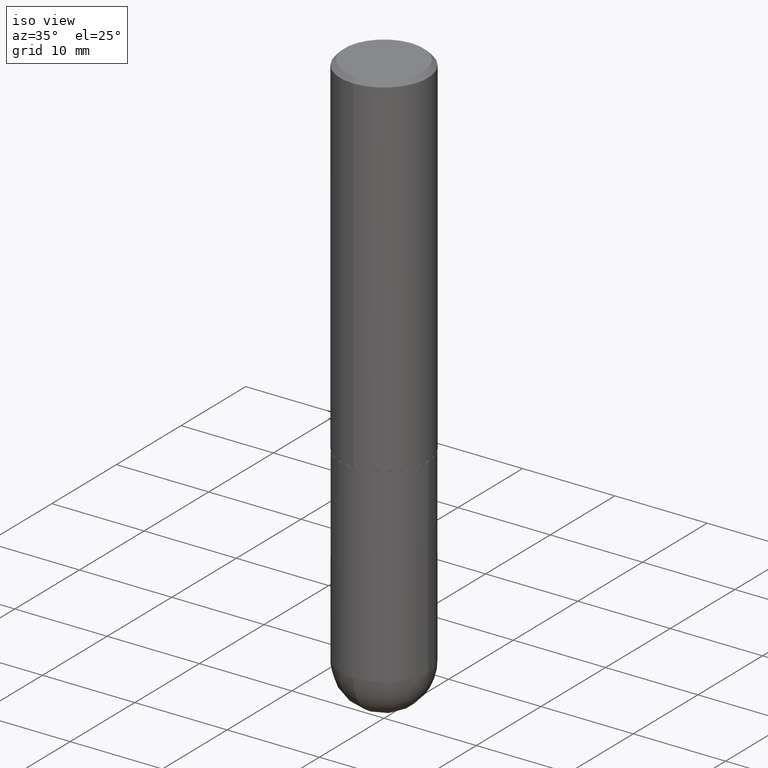
[diagram: clean part render]
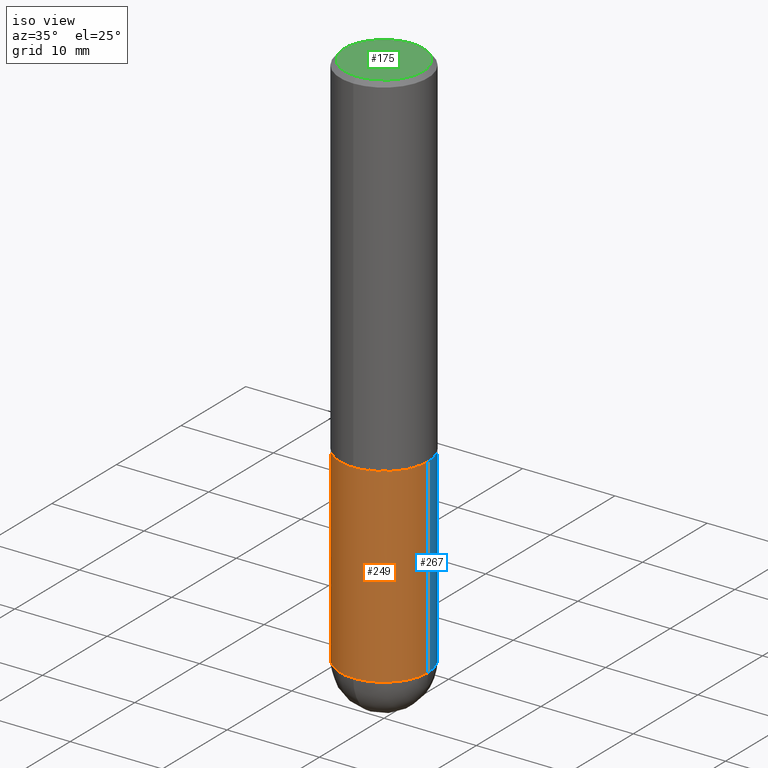
[diagram: same view with three faces highlighted in distinct colors, each labeled with its STEP entity id]
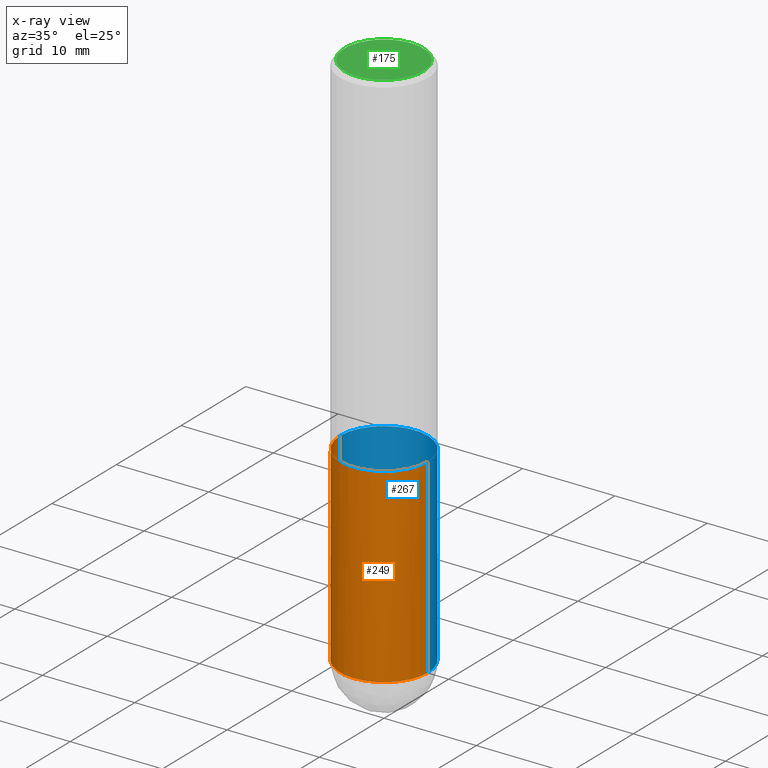
[diagram: x-ray of the same camera — body ghosted, the three highlighted faces saturated]
A machine part, iso view with three faces highlighted in distinct colors.
The next image is the same camera in x-ray (body ghosted, the three faces saturated) — at least one of them is partly hidden behind the body in this view.
Their STEP definitions:

[orange] entity #249 — the highlighted cylindrical surface (partial cylindrical patch) has radius 4.7625 mm, axis along (-0, 0, 1).
#5 = DIRECTION ( 'NONE',  ( 1.000000000000000000, -6.982962677686265922E-15, 4.876176775795935793E-29 ) ) ;
#7 = LINE ( 'NONE', #293, #288 ) ;
#10 = DIRECTION ( 'NONE',  ( -2.445468806185136877E-29, 3.491481338843145188E-15, 1.000000000000000000 ) ) ;
#15 = AXIS2_PLACEMENT_3D ( 'NONE', #91, #255, #218 ) ;
#20 = ORIENTED_EDGE ( 'NONE', *, *, #143, .F. ) ;
#32 = CARTESIAN_POINT ( 'NONE',  ( 5.655146614303128380E-29, -8.074050596074775072E-15, -2.312500000000000000 ) ) ;
#43 = CIRCLE ( 'NONE', #195, 0.1875000000000000278 ) ;
#66 = ORIENTED_EDGE ( 'NONE', *, *, #388, .T. ) ;
#67 = DIRECTION ( 'NONE',  ( -2.445468806185136597E-29, 3.491481338843145583E-15, 1.000000000000000000 ) ) ;
#69 = ORIENTED_EDGE ( 'NONE', *, *, #206, .T. ) ;
#70 = DIRECTION ( 'NONE',  ( 1.000000000000000000, -6.982962677686266711E-15, 0.000000000000000000 ) ) ;
#71 = VERTEX_POINT ( 'NONE', #213 ) ;
#91 = CARTESIAN_POINT ( 'NONE',  ( 5.655146614303128380E-29, -8.074050596074775072E-15, -2.312500000000000000 ) ) ;
#96 = DIRECTION ( 'NONE',  ( -2.445468806185136597E-29, 3.491481338843145583E-15, 1.000000000000000000 ) ) ;
#102 = CIRCLE ( 'NONE', #391, 0.1875000000000000555 ) ;
#106 = ORIENTED_EDGE ( 'NONE', *, *, #261, .F. ) ;
#121 = DIRECTION ( 'NONE',  ( 1.000000000000000000, -6.982962677686270655E-15, 0.000000000000000000 ) ) ;
#126 = CARTESIAN_POINT ( 'NONE',  ( -0.1875000000000000278, -5.323368672619557593E-15, -1.500000000000000222 ) ) ;
#131 = AXIS2_PLACEMENT_3D ( 'NONE', #235, #96, #5 ) ;
#133 = VECTOR ( 'NONE', #353, 39.37007874015748143 ) ;
#143 = EDGE_CURVE ( 'NONE', #188, #243, #43, .T. ) ;
#156 = CARTESIAN_POINT ( 'NONE',  ( 3.668203209277704895E-29, -5.237222008264718177E-15, -1.500000000000000222 ) ) ;
#188 = VERTEX_POINT ( 'NONE', #126 ) ;
#195 = AXIS2_PLACEMENT_3D ( 'NONE', #156, #284, #70 ) ;
#206 = EDGE_CURVE ( 'NONE', #230, #307, #322, .T. ) ;
#209 = EDGE_LOOP ( 'NONE', ( #106, #275, #69, #66, #20 ) ) ;
#213 = CARTESIAN_POINT ( 'NONE',  ( -0.1875000000000000555, -5.323368672619559170E-15, -2.312500000000000000 ) ) ;
#218 = DIRECTION ( 'NONE',  ( 1.000000000000000000, -6.982962677686270655E-15, 0.000000000000000000 ) ) ;
#222 = CYLINDRICAL_SURFACE ( 'NONE', #131, 0.1875000000000000555 ) ;
#230 = VERTEX_POINT ( 'NONE', #253 ) ;
#235 = CARTESIAN_POINT ( 'NONE',  ( 0.000000000000000000, 0.000000000000000000, 0.000000000000000000 ) ) ;
#243 = VERTEX_POINT ( 'NONE', #410 ) ;
#249 = ADVANCED_FACE ( 'NONE', ( #376 ), #222, .T. ) ;
#253 = CARTESIAN_POINT ( 'NONE',  ( -1.332267629550134009E-15, -0.1875000000000084932, -2.312499999999999556 ) ) ;
#255 = DIRECTION ( 'NONE',  ( -2.445468806185136597E-29, 3.491481338843145583E-15, 1.000000000000000000 ) ) ;
#260 = LINE ( 'NONE', #387, #133 ) ;
#261 = EDGE_CURVE ( 'NONE', #71, #188, #260, .T. ) ;
#275 = ORIENTED_EDGE ( 'NONE', *, *, #341, .T. ) ;
#284 = DIRECTION ( 'NONE',  ( -2.445468806185136597E-29, 3.491481338843145583E-15, 1.000000000000000000 ) ) ;
#288 = VECTOR ( 'NONE', #10, 39.37007874015748143 ) ;
#293 = CARTESIAN_POINT ( 'NONE',  ( 0.1875000000000000555, -1.309305502066175205E-15, 9.142831454617382414E-30 ) ) ;
#300 = CARTESIAN_POINT ( 'NONE',  ( 0.1875000000000000555, -7.964941804235924394E-15, -2.312500000000000000 ) ) ;
#307 = VERTEX_POINT ( 'NONE', #300 ) ;
#322 = CIRCLE ( 'NONE', #15, 0.1875000000000000555 ) ;
#341 = EDGE_CURVE ( 'NONE', #71, #230, #102, .T. ) ;
#353 = DIRECTION ( 'NONE',  ( -2.445468806185136877E-29, 3.491481338843145188E-15, 1.000000000000000000 ) ) ;
#376 = FACE_OUTER_BOUND ( 'NONE', #209, .T. ) ;
#387 = CARTESIAN_POINT ( 'NONE',  ( -0.1875000000000000555, 1.332267629550188243E-15, -9.223003294227950793E-30 ) ) ;
#388 = EDGE_CURVE ( 'NONE', #307, #243, #7, .T. ) ;
#391 = AXIS2_PLACEMENT_3D ( 'NONE', #32, #67, #121 ) ;
#410 = CARTESIAN_POINT ( 'NONE',  ( 0.1875000000000000278, -6.546527510330893974E-15, -1.500000000000000222 ) ) ;

[blue] entity #267 — the highlighted cylindrical surface (partial cylindrical patch) has radius 4.7625 mm, axis along (-0, 0, 1).
#1 = AXIS2_PLACEMENT_3D ( 'NONE', #310, #30, #337 ) ;
#7 = LINE ( 'NONE', #293, #288 ) ;
#10 = DIRECTION ( 'NONE',  ( -2.445468806185136877E-29, 3.491481338843145188E-15, 1.000000000000000000 ) ) ;
#12 = EDGE_CURVE ( 'NONE', #307, #64, #72, .T. ) ;
#28 = CARTESIAN_POINT ( 'NONE',  ( 5.655146614303128380E-29, -8.074050596074775072E-15, -2.312500000000000000 ) ) ;
#30 = DIRECTION ( 'NONE',  ( -2.445468806185136597E-29, 3.491481338843145583E-15, 1.000000000000000000 ) ) ;
#41 = CYLINDRICAL_SURFACE ( 'NONE', #98, 0.1875000000000000555 ) ;
#44 = DIRECTION ( 'NONE',  ( -2.445468806185136597E-29, 3.491481338843145583E-15, 1.000000000000000000 ) ) ;
#56 = AXIS2_PLACEMENT_3D ( 'NONE', #28, #350, #316 ) ;
#64 = VERTEX_POINT ( 'NONE', #82 ) ;
#68 = CARTESIAN_POINT ( 'NONE',  ( 5.655146614303128380E-29, -8.074050596074775072E-15, -2.312500000000000000 ) ) ;
#71 = VERTEX_POINT ( 'NONE', #213 ) ;
#72 = CIRCLE ( 'NONE', #56, 0.1875000000000000555 ) ;
#82 = CARTESIAN_POINT ( 'NONE',  ( 1.309305502066231017E-15, 0.1874999999999918954, -2.312500000000000444 ) ) ;
#90 = DIRECTION ( 'NONE',  ( -2.445468806185136597E-29, 3.491481338843145583E-15, 1.000000000000000000 ) ) ;
#98 = AXIS2_PLACEMENT_3D ( 'NONE', #164, #44, #390 ) ;
#124 = EDGE_CURVE ( 'NONE', #64, #71, #273, .T. ) ;
#126 = CARTESIAN_POINT ( 'NONE',  ( -0.1875000000000000278, -5.323368672619557593E-15, -1.500000000000000222 ) ) ;
#133 = VECTOR ( 'NONE', #353, 39.37007874015748143 ) ;
#164 = CARTESIAN_POINT ( 'NONE',  ( 0.000000000000000000, 0.000000000000000000, 0.000000000000000000 ) ) ;
#188 = VERTEX_POINT ( 'NONE', #126 ) ;
#192 = ORIENTED_EDGE ( 'NONE', *, *, #124, .T. ) ;
#201 = FACE_OUTER_BOUND ( 'NONE', #250, .T. ) ;
#213 = CARTESIAN_POINT ( 'NONE',  ( -0.1875000000000000555, -5.323368672619559170E-15, -2.312500000000000000 ) ) ;
#223 = EDGE_CURVE ( 'NONE', #243, #188, #282, .T. ) ;
#243 = VERTEX_POINT ( 'NONE', #410 ) ;
#250 = EDGE_LOOP ( 'NONE', ( #192, #383, #340, #405, #399 ) ) ;
#260 = LINE ( 'NONE', #387, #133 ) ;
#261 = EDGE_CURVE ( 'NONE', #71, #188, #260, .T. ) ;
#267 = ADVANCED_FACE ( 'NONE', ( #201 ), #41, .T. ) ;
#273 = CIRCLE ( 'NONE', #335, 0.1875000000000000555 ) ;
#282 = CIRCLE ( 'NONE', #1, 0.1875000000000000278 ) ;
#288 = VECTOR ( 'NONE', #10, 39.37007874015748143 ) ;
#293 = CARTESIAN_POINT ( 'NONE',  ( 0.1875000000000000555, -1.309305502066175205E-15, 9.142831454617382414E-30 ) ) ;
#300 = CARTESIAN_POINT ( 'NONE',  ( 0.1875000000000000555, -7.964941804235924394E-15, -2.312500000000000000 ) ) ;
#307 = VERTEX_POINT ( 'NONE', #300 ) ;
#310 = CARTESIAN_POINT ( 'NONE',  ( 3.668203209277704895E-29, -5.237222008264718177E-15, -1.500000000000000222 ) ) ;
#315 = DIRECTION ( 'NONE',  ( 1.000000000000000000, -6.982962677686270655E-15, 0.000000000000000000 ) ) ;
#316 = DIRECTION ( 'NONE',  ( 1.000000000000000000, -6.982962677686270655E-15, 0.000000000000000000 ) ) ;
#335 = AXIS2_PLACEMENT_3D ( 'NONE', #68, #90, #315 ) ;
#337 = DIRECTION ( 'NONE',  ( 1.000000000000000000, -6.982962677686266711E-15, 0.000000000000000000 ) ) ;
#340 = ORIENTED_EDGE ( 'NONE', *, *, #223, .F. ) ;
#350 = DIRECTION ( 'NONE',  ( -2.445468806185136597E-29, 3.491481338843145583E-15, 1.000000000000000000 ) ) ;
#353 = DIRECTION ( 'NONE',  ( -2.445468806185136877E-29, 3.491481338843145188E-15, 1.000000000000000000 ) ) ;
#383 = ORIENTED_EDGE ( 'NONE', *, *, #261, .T. ) ;
#387 = CARTESIAN_POINT ( 'NONE',  ( -0.1875000000000000555, 1.332267629550188243E-15, -9.223003294227950793E-30 ) ) ;
#388 = EDGE_CURVE ( 'NONE', #307, #243, #7, .T. ) ;
#390 = DIRECTION ( 'NONE',  ( 1.000000000000000000, -6.982962677686265922E-15, 4.876176775795935793E-29 ) ) ;
#399 = ORIENTED_EDGE ( 'NONE', *, *, #12, .T. ) ;
#405 = ORIENTED_EDGE ( 'NONE', *, *, #388, .F. ) ;
#410 = CARTESIAN_POINT ( 'NONE',  ( 0.1875000000000000278, -6.546527510330893974E-15, -1.500000000000000222 ) ) ;

[green] entity #175 — the highlighted planar face has unit normal (0, -0, -1).
#9 = DIRECTION ( 'NONE',  ( -2.445571982926080285E-29, 3.491333583877658817E-15, 1.000000000000000000 ) ) ;
#54 = VERTEX_POINT ( 'NONE', #245 ) ;
#85 = FACE_OUTER_BOUND ( 'NONE', #108, .T. ) ;
#108 = EDGE_LOOP ( 'NONE', ( #366, #214 ) ) ;
#122 = DIRECTION ( 'NONE',  ( 6.982962677686265922E-15, 1.000000000000000000, -3.491333583877658422E-15 ) ) ;
#144 = AXIS2_PLACEMENT_3D ( 'NONE', #336, #290, #162 ) ;
#158 = CARTESIAN_POINT ( 'NONE',  ( 1.169646248512449595E-15, 0.1674999999999999822, -5.848107497778673142E-16 ) ) ;
#162 = DIRECTION ( 'NONE',  ( -6.982962677686266711E-15, -1.000000000000000000, 3.491333583877659211E-15 ) ) ;
#165 = CARTESIAN_POINT ( 'NONE',  ( 6.052535515876864583E-49, -8.640686375916787701E-35, -2.474895671905400626E-20 ) ) ;
#175 = ADVANCED_FACE ( 'NONE', ( #85 ), #229, .F. ) ;
#214 = ORIENTED_EDGE ( 'NONE', *, *, #264, .T. ) ;
#229 = PLANE ( 'NONE',  #352 ) ;
#245 = CARTESIAN_POINT ( 'NONE',  ( -1.217738394604446442E-15, -0.1674999999999999822, 5.847736263427887505E-16 ) ) ;
#263 = DIRECTION ( 'NONE',  ( -6.982962677686266711E-15, -1.000000000000000000, 3.491333583877659211E-15 ) ) ;
#264 = EDGE_CURVE ( 'NONE', #54, #303, #398, .T. ) ;
#290 = DIRECTION ( 'NONE',  ( -2.445571982926080285E-29, 3.491333583877658817E-15, 1.000000000000000000 ) ) ;
#303 = VERTEX_POINT ( 'NONE', #384 ) ;
#336 = CARTESIAN_POINT ( 'NONE',  ( 6.052535515876864583E-49, -8.640686375916787701E-35, -2.474895671905400626E-20 ) ) ;
#349 = EDGE_CURVE ( 'NONE', #303, #54, #360, .T. ) ;
#352 = AXIS2_PLACEMENT_3D ( 'NONE', #158, #377, #122 ) ;
#360 = CIRCLE ( 'NONE', #144, 0.1674999999999999822 ) ;
#366 = ORIENTED_EDGE ( 'NONE', *, *, #349, .T. ) ;
#377 = DIRECTION ( 'NONE',  ( 2.445571982926080285E-29, -3.491333583877658422E-15, -1.000000000000000000 ) ) ;
#384 = CARTESIAN_POINT ( 'NONE',  ( 1.239475875289312499E-15, 0.1674999999999999822, -5.848231242562269669E-16 ) ) ;
#398 = CIRCLE ( 'NONE', #409, 0.1674999999999999822 ) ;
#409 = AXIS2_PLACEMENT_3D ( 'NONE', #165, #9, #263 ) ;